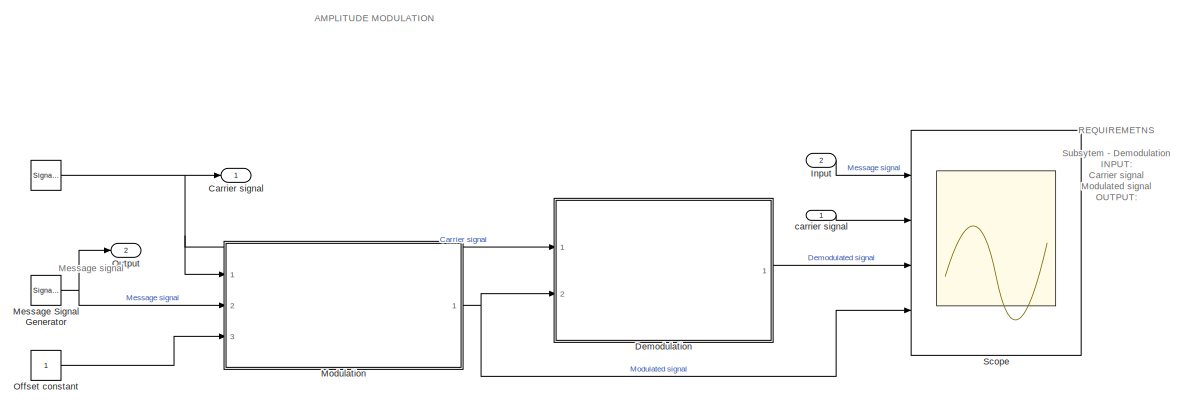
[diagram: root canvas - part 1/2, most of the canvas]
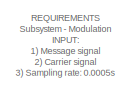
[diagram: root canvas - part 2/2, middle left region]
MODEL slx_04b3ca3e2563
KIND model
CONFIG AbsTol = auto
CONFIG EnableMultiTasking = off
CONFIG FixedStep = auto
CONFIG MaxStep = auto
CONFIG MinStep = auto
CONFIG RelTol = 1e-3
CONFIG SampleTimeConstraint = Unconstrained
CONFIG SolverName = VariableStepAuto
CONFIG StartTime = 0.0
CONFIG StopTime = 10.0
BLOCK [SignalGenerator]  
  Frequency = 2*pi*25
  Ports = [0, 1]
  Units = rad/sec
BLOCK [Outport] Carrier signal
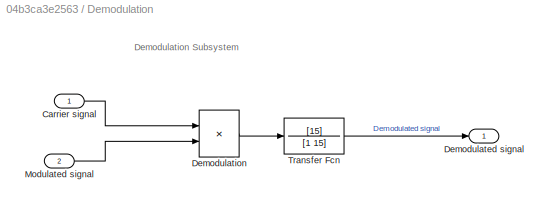
BLOCK [SubSystem] Demodulation
  Ports = [2, 1]
  RequestExecContextInheritance = off
BLOCK [Inport] Demodulation/Carrier signal
BLOCK [Outport] Demodulation/Demodulated signal
BLOCK [Product] Demodulation/Demodulation
  Ports = [2, 1]
BLOCK [Inport] Demodulation/Modulated signal
  Port = 2
BLOCK [TransferFcn] Demodulation/Transfer Fcn
  Denominator = [1 15]
  Numerator = [15]
BLOCK [Inport] Input
  Port = 2
BLOCK [SignalGenerator] Message Signal Generator
  Frequency = 2*pi
  Ports = [0, 1]
  Units = rad/sec
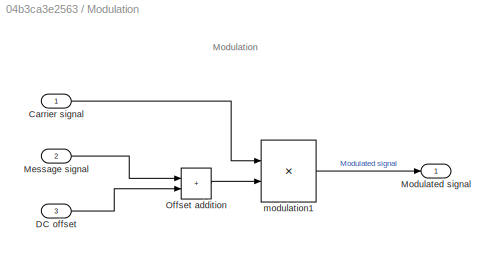
BLOCK [SubSystem] Modulation
  Ports = [3, 1]
  RequestExecContextInheritance = off
BLOCK [Inport] Modulation/Carrier signal
BLOCK [Inport] Modulation/DC offset
  Port = 3
BLOCK [Inport] Modulation/Message signal
  Port = 2
BLOCK [Outport] Modulation/Modulated signal
BLOCK [Sum] Modulation/Offset addition
  IconShape = rectangular
  Ports = [2, 1]
BLOCK [Product] Modulation/modulation1
  Ports = [2, 1]
BLOCK [Constant] Offset constant
BLOCK [Outport] Output
  Port = 2
BLOCK [Scope] Scope
  Floating = off
  NumInputPorts = 4
  Ports = [4]
  ScopeSpecificationString = Simulink.scopes.TimeScopeBlockCfg('CurrentConfiguration', extmgr.ConfigurationSet(extmgr.Configuration('Core','General UI',true),extmgr.Configuration('Core','Source UI',true),extmgr.Configuration('Sources','WiredSimulink',true,'DataLoggingVariableName','ScopeData1'),extmgr.Configuration('Visuals','Time Domain',true,'SerializedDisplays',{struct('MinYLimReal','-1.24999','MaxYLimReal','1.25','YLabelR...<+3483ch>
BLOCK [Inport] carrier signal
  NameLocation = right
ANNOTATION (root): REQUIREMENTS Subsystem - Modulation INPUT: 1) Message signal 2) Carrier signal 3) Sampling rate: 0.0005s 4) Frequency of message signal: 2*pi 5) Frequency of carrier signal: 2*pi*25 6) Offset constant = 1 Ouput: 1) Modulated signal
ANNOTATION (root): AMPLITUDE MODULATION
ANNOTATION (root): REQUIREMETNS Subsytem - Demodulation INPUT: Carrier signal Modulated signal OUTPUT: Demodulated signal
ANNOTATION (root): Message signal
ANNOTATION Demodulation: Demodulation Subsystem
ANNOTATION Modulation: Modulation
NET  :1 -> Carrier signal:1, Demodulation:1, Modulation:1
LINE Demodulation/Carrier signal:1 -> Demodulation/Demodulation:1
LINE Demodulation/Demodulation:1 -> Demodulation/Transfer Fcn:1
LINE Demodulation/Modulated signal:1 -> Demodulation/Demodulation:2
LINE Demodulation/Transfer Fcn:1 -> Demodulation/Demodulated signal:1
LINE Demodulation:1 -> Scope:3
LINE Input:1 -> Scope:1
NET Message Signal Generator:1 -> Modulation:2, Output:1
LINE Modulation/Carrier signal:1 -> Modulation/modulation1:1
LINE Modulation/DC offset:1 -> Modulation/Offset addition:2
LINE Modulation/Message signal:1 -> Modulation/Offset addition:1
LINE Modulation/Offset addition:1 -> Modulation/modulation1:2
LINE Modulation/modulation1:1 -> Modulation/Modulated signal:1
NET Modulation:1 -> Demodulation:2, Scope:4
LINE Offset constant:1 -> Modulation:3
LINE carrier signal:1 -> Scope:2
note: NET lines group one-source signal fan-out (src -> all destinations, sorted); 1:1 wires keep LINE
